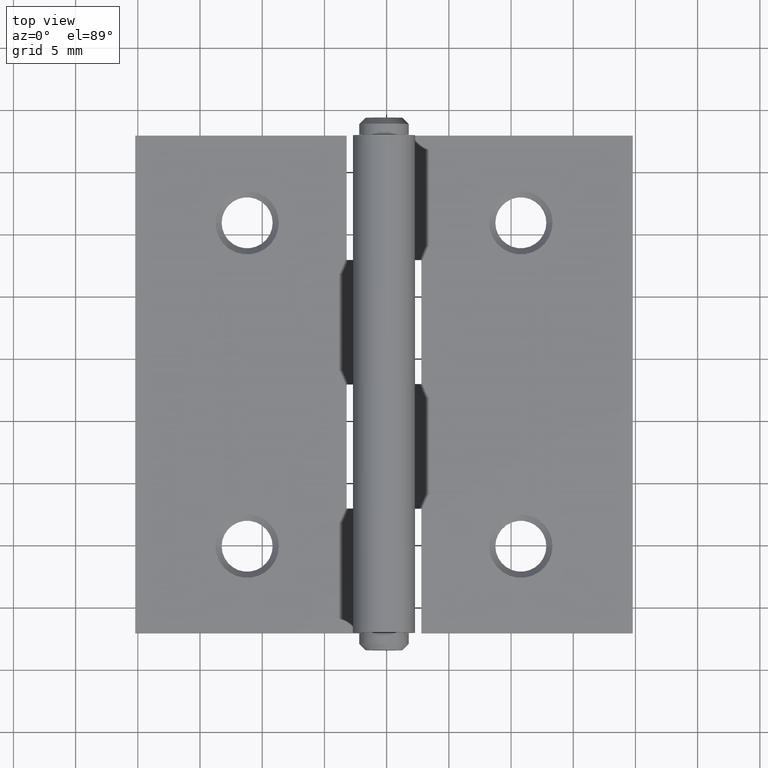
[diagram: clean part render]
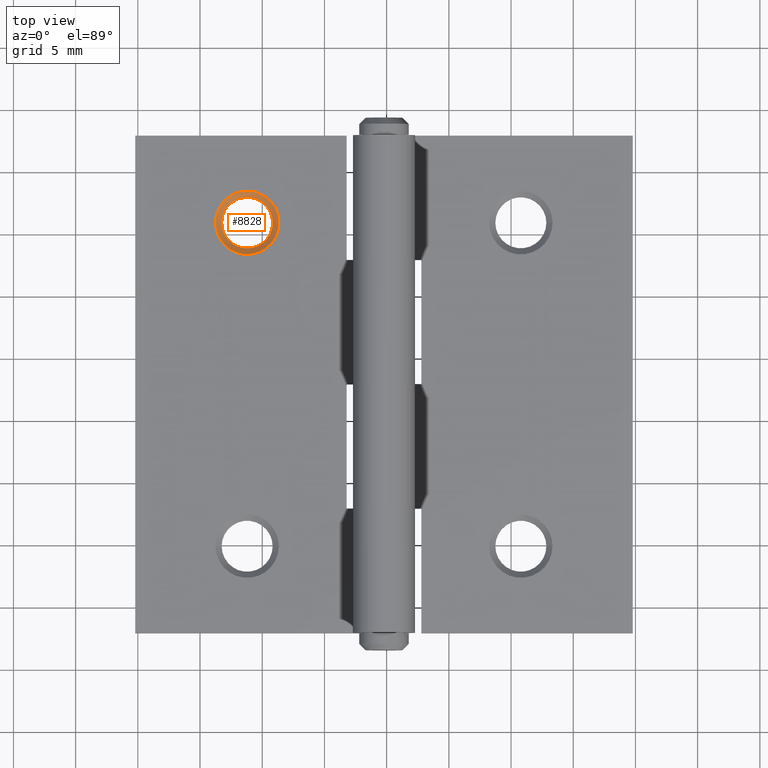
[diagram: same view with one face highlighted and labeled with its STEP entity id]
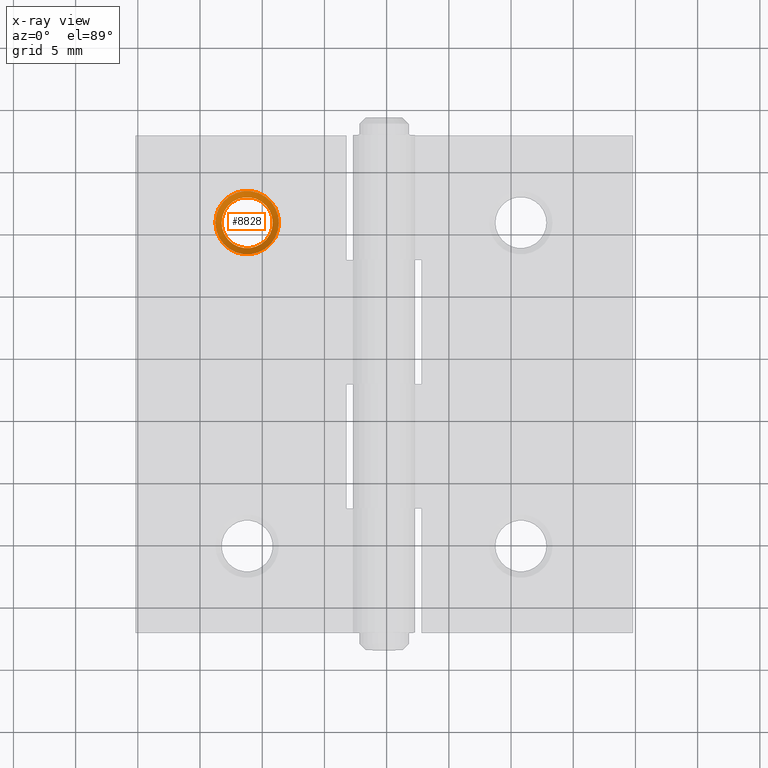
[diagram: x-ray of the same camera — body ghosted, the highlighted face saturated]
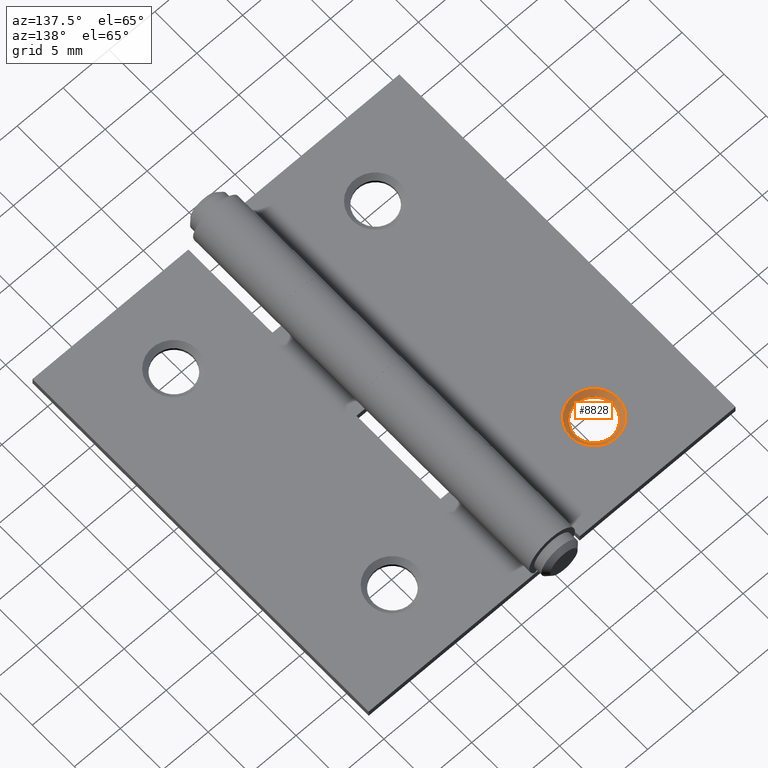
[diagram: same view with one face highlighted and labeled with its STEP entity id]
A machine part, top view. The second image highlights one B-rep face of the part: STEP entity #8828.
The next image is the same camera in x-ray: the body ghosted, the highlighted face saturated — about 0% of this face is hidden behind the body in this view.
A second angle (auxiliary view) of the same face is appended — the face is thin or edge-on in the first view.
In plain terms, the highlighted conical surface has half-angle 45 deg.
Its self-contained STEP definition (entity closure, byte-faithful):
#375 = CONICAL_SURFACE ( 'NONE', #4502, 2.049999999999999822, 0.7853981633974496113 ) ;
#836 = DIRECTION ( 'NONE',  ( -1.000000000000000000, 0.000000000000000000, 0.000000000000000000 ) ) ;
#1289 = CIRCLE ( 'NONE', #1470, 2.049999999999999822 ) ;
#1409 = FACE_OUTER_BOUND ( 'NONE', #2938, .T. ) ;
#1470 = AXIS2_PLACEMENT_3D ( 'NONE', #4960, #6563, #836 ) ;
#1568 = CARTESIAN_POINT ( 'NONE',  ( -16.05000000000004690, 12.99999999999999822, 0.8000000000000017097 ) ) ;
#1661 = FACE_BOUND ( 'NONE', #5526, .T. ) ;
#1754 = VERTEX_POINT ( 'NONE', #1568 ) ;
#2648 = VERTEX_POINT ( 'NONE', #6334 ) ;
#2938 = EDGE_LOOP ( 'NONE', ( #9709 ) ) ;
#3053 = DIRECTION ( 'NONE',  ( 1.000000000000000000, 0.000000000000000000, 0.000000000000000000 ) ) ;
#3709 = CARTESIAN_POINT ( 'NONE',  ( -13.50000000000000711, 12.99999999999999822, 0.8000000000000013767 ) ) ;
#4462 = EDGE_CURVE ( 'NONE', #1754, #1754, #8212, .T. ) ;
#4502 = AXIS2_PLACEMENT_3D ( 'NONE', #7101, #6288, #3053 ) ;
#4547 = DIRECTION ( 'NONE',  ( -1.301042606982605567E-16, 0.000000000000000000, -1.000000000000000000 ) ) ;
#4960 = CARTESIAN_POINT ( 'NONE',  ( -13.50000000000000711, 12.99999999999999822, 0.2999999999999627409 ) ) ;
#5526 = EDGE_LOOP ( 'NONE', ( #8513 ) ) ;
#6288 = DIRECTION ( 'NONE',  ( 0.000000000000000000, 0.000000000000000000, 1.000000000000000000 ) ) ;
#6334 = CARTESIAN_POINT ( 'NONE',  ( -15.55000000000000604, 12.99999999999999822, 0.2999999999999627409 ) ) ;
#6563 = DIRECTION ( 'NONE',  ( 0.000000000000000000, 0.000000000000000000, 1.000000000000000000 ) ) ;
#7101 = CARTESIAN_POINT ( 'NONE',  ( -13.50000000000000711, 12.99999999999999822, 0.2999999999999627409 ) ) ;
#8058 = EDGE_CURVE ( 'NONE', #2648, #2648, #1289, .T. ) ;
#8123 = AXIS2_PLACEMENT_3D ( 'NONE', #3709, #4547, #9349 ) ;
#8212 = CIRCLE ( 'NONE', #8123, 2.550000000000040234 ) ;
#8513 = ORIENTED_EDGE ( 'NONE', *, *, #8058, .F. ) ;
#8828 = ADVANCED_FACE ( 'NONE', ( #1409, #1661 ), #375, .F. ) ;
#9349 = DIRECTION ( 'NONE',  ( -1.000000000000000000, 0.000000000000000000, 1.275531967629985031E-16 ) ) ;
#9709 = ORIENTED_EDGE ( 'NONE', *, *, #4462, .F. ) ;